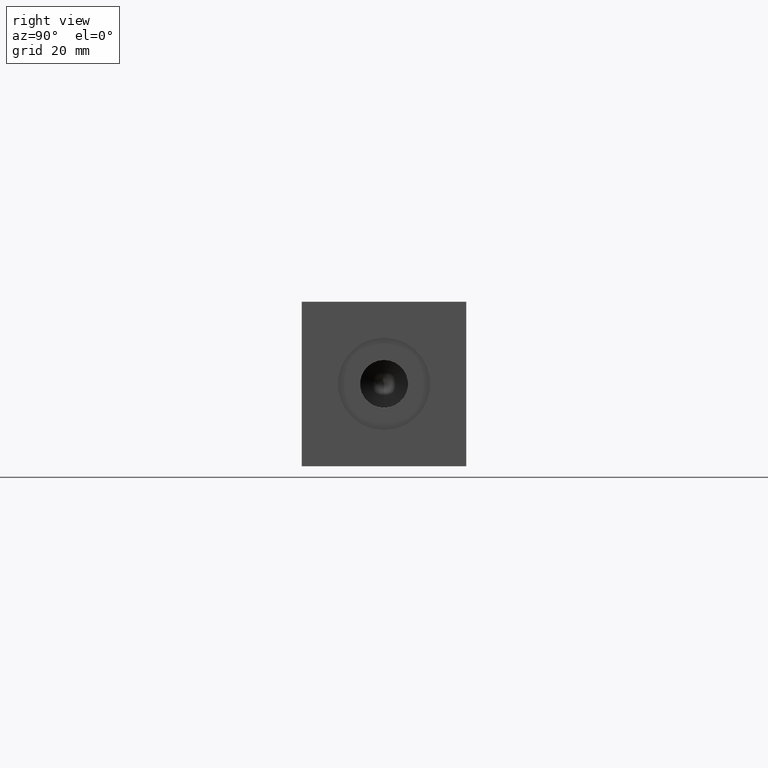
[diagram: clean part render]
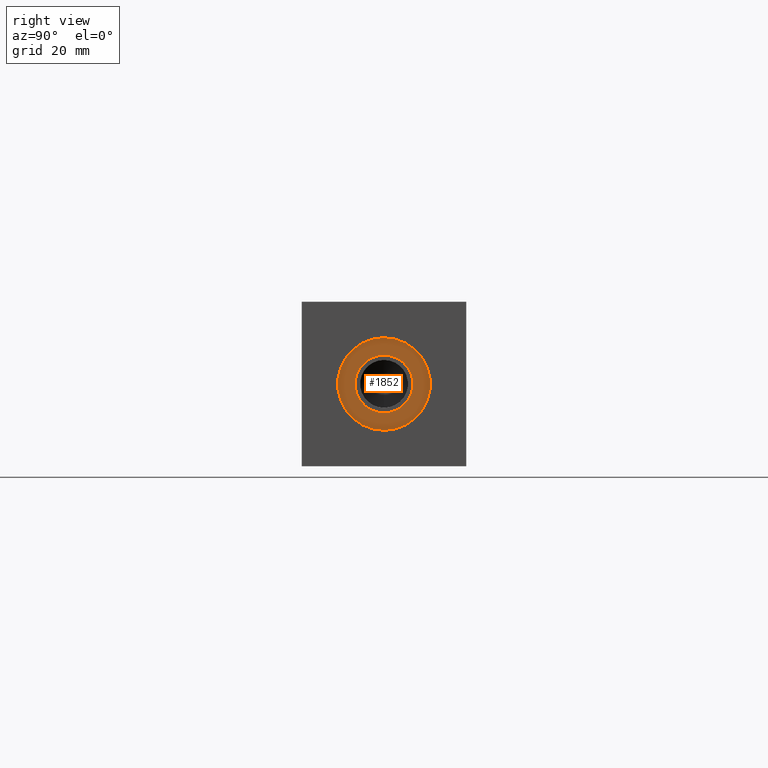
[diagram: same view with one face highlighted and labeled with its STEP entity id]
A machine part, right view. The second image highlights one B-rep face of the part: STEP entity #1852.
In plain terms, the highlighted planar face has unit normal (-1, 0, 0).
Its self-contained STEP definition (entity closure, byte-faithful):
#1818=CARTESIAN_POINT('',(186.537600000000000,22.225000000000001,14.427199999999999));
#1819=VERTEX_POINT('',#1818);
#1820=CARTESIAN_POINT('',(186.537600000000000,22.225000000000001,22.225000000000001));
#1821=DIRECTION('',(1.0,0.0,0.0));
#1822=DIRECTION('',(0.0,0.0,-1.0));
#1823=AXIS2_PLACEMENT_3D('',#1820,#1821,#1822);
#1824=CIRCLE('',#1823,7.797800000000001);
#1825=EDGE_CURVE('',#1819,#1819,#1824,.T.);
#1833=CARTESIAN_POINT('',(186.537600000000000,22.225000000000001,12.071350000000001));
#1834=DIRECTION('',(-1.0,0.0,0.0));
#1835=DIRECTION('',(0.0,0.0,1.0));
#1836=AXIS2_PLACEMENT_3D('',#1833,#1834,#1835);
#1837=PLANE('',#1836);
#1838=CARTESIAN_POINT('',(186.537600000000000,22.225000000000001,9.715500000000002));
#1839=VERTEX_POINT('',#1838);
#1840=CARTESIAN_POINT('',(186.537600000000000,22.225000000000001,22.225000000000001));
#1841=DIRECTION('',(1.0,0.0,0.0));
#1842=DIRECTION('',(0.0,0.0,-1.0));
#1843=AXIS2_PLACEMENT_3D('',#1840,#1841,#1842);
#1844=CIRCLE('',#1843,12.509499999999999);
#1845=EDGE_CURVE('',#1839,#1839,#1844,.T.);
#1846=ORIENTED_EDGE('',*,*,#1845,.T.);
#1847=EDGE_LOOP('',(#1846));
#1848=FACE_OUTER_BOUND('',#1847,.T.);
#1849=ORIENTED_EDGE('',*,*,#1825,.F.);
#1850=EDGE_LOOP('',(#1849));
#1851=FACE_BOUND('',#1850,.T.);
#1852=ADVANCED_FACE('',(#1848,#1851),#1837,.F.);